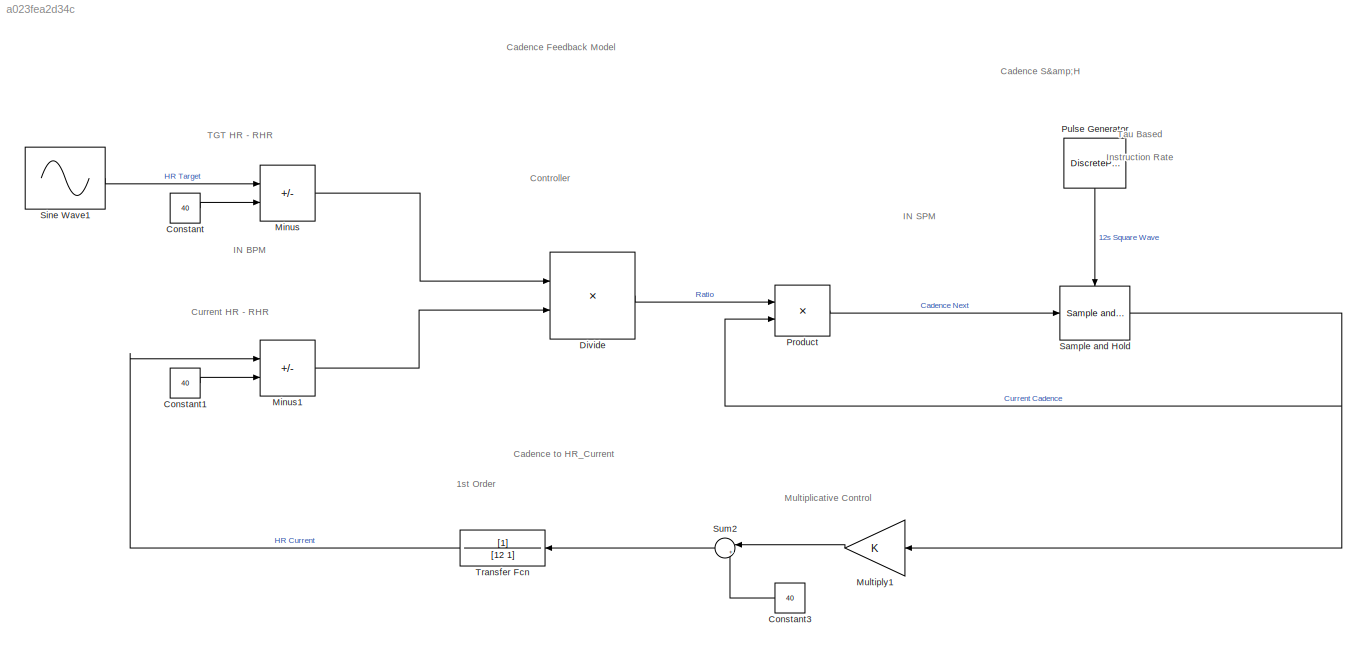
MODEL slx_a023fea2d34c
KIND model
CONFIG AbsTol = auto
CONFIG EnableMultiTasking = off
CONFIG FixedStep = auto
CONFIG MaxStep = auto
CONFIG MinStep = auto
CONFIG RelTol = 1e-3
CONFIG SampleTimeConstraint = Unconstrained
CONFIG SolverName = VariableStepAuto
CONFIG StartTime = 0.0
CONFIG StopTime = 10.0
BLOCK [Constant] Constant
  Value = 40
BLOCK [Constant] Constant1
  Value = 40
BLOCK [Constant] Constant3
  NameLocation = top
  Value = 40
BLOCK [Product] Divide
  Inputs = */
BLOCK [Sum] Minus
  IconShape = rectangular
  Inputs = +-
BLOCK [Sum] Minus1
  IconShape = rectangular
  Inputs = +-
BLOCK [Gain] Multiply1
  NameLocation = top
BLOCK [Product] Product
BLOCK [DiscretePulseGenerator] Pulse Generator
  NameLocation = left
  Period = 12
  PulseType = Time based
  PulseWidth = 10
BLOCK [Reference] Sample and Hold  REF=dspsigops/Sample
and Hold
  LibrarySourceBlock = dsphdlsupportsigops/Sample\nand Hold
  SourceBlock = dspsigops/Sample\nand Hold
  SourceType = Sample and Hold
BLOCK [Sin] Sine Wave1
  Amplitude = 20
  Bias = 120
  Frequency = 0.05
  SampleTime = 0
BLOCK [Sum] Sum2
  Inputs = |++
  NameLocation = top
BLOCK [TransferFcn] Transfer Fcn
  Denominator = [12 1]
  NameLocation = top
ANNOTATION (root): 1st Order
ANNOTATION (root): Current HR - RHR
ANNOTATION (root): TGT HR - RHR
ANNOTATION (root): Cadence S&H
ANNOTATION (root): Controller
ANNOTATION (root): IN BPM
ANNOTATION (root): Tau Based Instruction Rate
ANNOTATION (root): Cadence to HR_Current
ANNOTATION (root): IN SPM
ANNOTATION (root): Cadence Feedback Model
ANNOTATION (root): Multiplicative Control
LINE Constant1:1 -> Minus1:2
LINE Constant3:1 -> Sum2:2
LINE Constant:1 -> Minus:2
LINE Divide:1 -> Product:1
LINE Minus1:1 -> Divide:2
LINE Minus:1 -> Divide:1
LINE Multiply1:1 -> Sum2:1
LINE Product:1 -> Sample and Hold:1
LINE Pulse Generator:1 -> Sample and Hold:trigger
NET Sample and Hold:1 -> Multiply1:1, Product:2
LINE Sine Wave1:1 -> Minus:1
LINE Sum2:1 -> Transfer Fcn:1
LINE Transfer Fcn:1 -> Minus1:1
note: NET lines group one-source signal fan-out (src -> all destinations, sorted); 1:1 wires keep LINE
